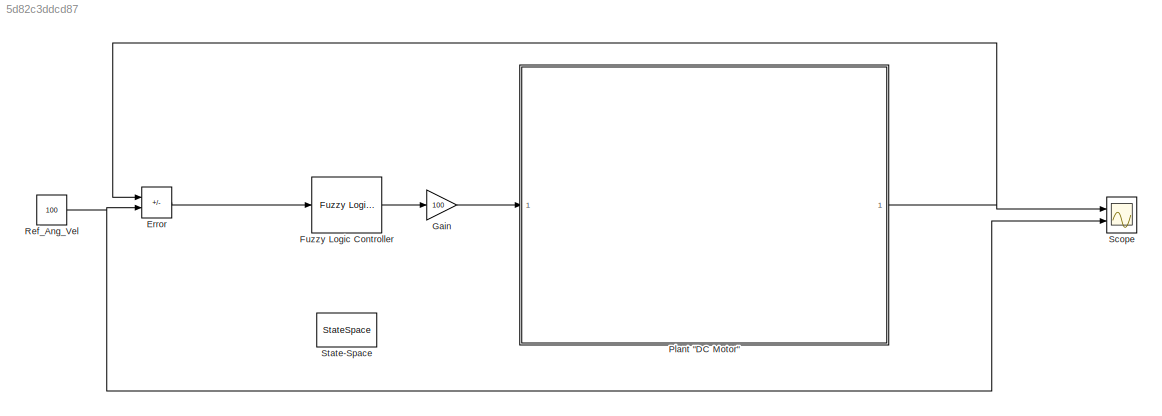
MODEL slx_5d82c3ddcd87
KIND model
CONFIG AbsTol = auto
CONFIG EnableMultiTasking = off
CONFIG FixedStep = auto
CONFIG MaxStep = auto
CONFIG MinStep = auto
CONFIG RelTol = 1e-3
CONFIG SampleTimeConstraint = Unconstrained
CONFIG SolverName = VariableStepAuto
CONFIG StartTime = 0.0
CONFIG StopTime = 10.0
BLOCK [Sum] Error
  IconShape = rectangular
  Inputs = +-
  Ports = [2, 1]
BLOCK [Reference] Fuzzy Logic Controller  REF=fuzblock/Fuzzy Logic   (lib defined in mdl_858b3b3e7478)
Controller
  Ports = [1, 1]
  SourceBlock = fuzblock/Fuzzy Logic \nController
  SourceProductBaseCode = FL
  SourceType = Fuzzy Inference System
BLOCK [Gain] Gain
  Gain = 100
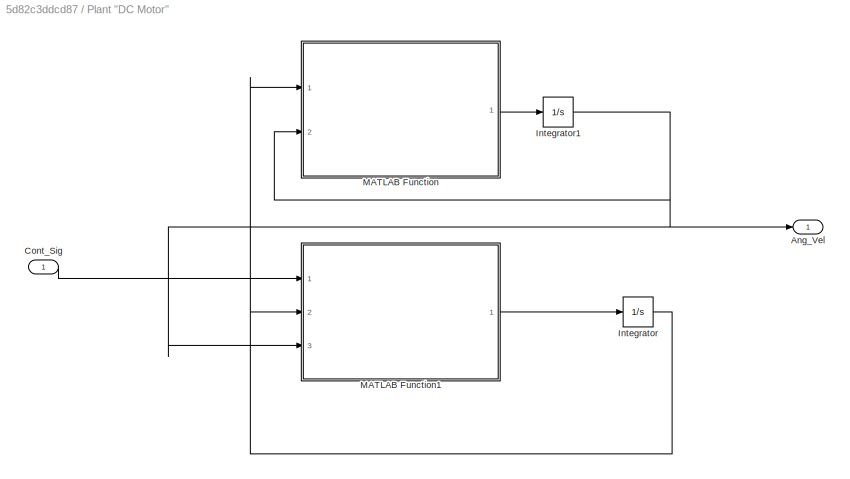
BLOCK [SubSystem] Plant "DC Motor"
  Ports = [1, 1]
  RequestExecContextInheritance = off
BLOCK [Outport] Plant "DC Motor"/Ang_Vel
BLOCK [Inport] Plant "DC Motor"/Cont_Sig
BLOCK [Integrator] Plant "DC Motor"/Integrator
  Ports = [1, 1]
BLOCK [Integrator] Plant "DC Motor"/Integrator1
  Ports = [1, 1]
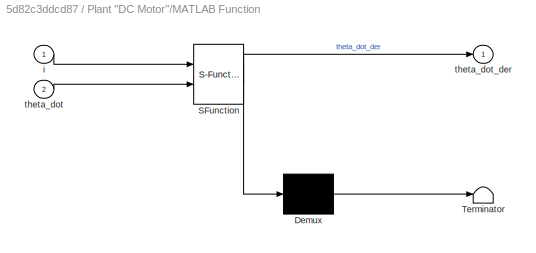
BLOCK [SubSystem] Plant "DC Motor"/MATLAB Function
  ErrorFcn = Stateflow.Translate.translate
  PermitHierarchicalResolution = ExplicitOnly
  Ports = [2, 1]
  RequestExecContextInheritance = off
  SFBlockType = MATLAB Function
  TreatAsAtomicUnit = on
BLOCK [Demux] Plant "DC Motor"/MATLAB Function/ Demux 
  Outputs = 1
  Ports = [1, 1]
BLOCK [S-Function] Plant "DC Motor"/MATLAB Function/ SFunction 
  EnableBusSupport = on
  FunctionName = sf_sfun
  PortCounts = [2 2]
  Ports = [2, 2]
  SFcnIsStateOwnerBlock = off
  SFunctionDeploymentMode = off
  Tag = Stateflow S-Function 2
BLOCK [Terminator] Plant "DC Motor"/MATLAB Function/ Terminator 
BLOCK [Inport] Plant "DC Motor"/MATLAB Function/i
BLOCK [Inport] Plant "DC Motor"/MATLAB Function/theta_dot
  Port = 2
BLOCK [Outport] Plant "DC Motor"/MATLAB Function/theta_dot_der
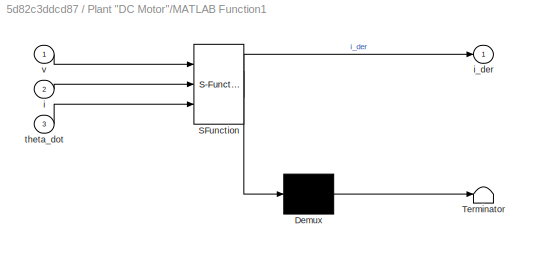
BLOCK [SubSystem] Plant "DC Motor"/MATLAB Function1
  ErrorFcn = Stateflow.Translate.translate
  PermitHierarchicalResolution = ExplicitOnly
  Ports = [3, 1]
  RequestExecContextInheritance = off
  SFBlockType = MATLAB Function
  TreatAsAtomicUnit = on
BLOCK [Demux] Plant "DC Motor"/MATLAB Function1/ Demux 
  Outputs = 1
  Ports = [1, 1]
BLOCK [S-Function] Plant "DC Motor"/MATLAB Function1/ SFunction 
  EnableBusSupport = on
  FunctionName = sf_sfun
  PortCounts = [3 2]
  Ports = [3, 2]
  SFcnIsStateOwnerBlock = off
  SFunctionDeploymentMode = off
  Tag = Stateflow S-Function 1
BLOCK [Terminator] Plant "DC Motor"/MATLAB Function1/ Terminator 
BLOCK [Inport] Plant "DC Motor"/MATLAB Function1/i
  Port = 2
BLOCK [Outport] Plant "DC Motor"/MATLAB Function1/i_der
BLOCK [Inport] Plant "DC Motor"/MATLAB Function1/theta_dot
  Port = 3
BLOCK [Inport] Plant "DC Motor"/MATLAB Function1/v
BLOCK [Constant] Ref_Ang_Vel
  Value = 100
BLOCK [Scope] Scope
  Floating = off
  NumInputPorts = 2
  Ports = [2]
  ScopeSpecificationString = Simulink.scopes.TimeScopeBlockCfg('CurrentConfiguration', extmgr.ConfigurationSet(extmgr.Configuration('Core','General UI',true),extmgr.Configuration('Core','Source UI',true),extmgr.Configuration('Sources','WiredSimulink',true),extmgr.Configuration('Visuals','Time Domain',true,'SerializedDisplays',{struct('MinYLimReal','-14.3118','MaxYLimReal','128.80624','YLabelReal','','MinYLimMag','0.00000','Ma...<+1430ch>
BLOCK [StateSpace] State-Space
  A = A
  B = B
  C = C
  Commented = on
  D = D
  InitialCondition = 0
  Ports = [1, 1]
LINE Error:1 -> Fuzzy Logic Controller:1
LINE Fuzzy Logic Controller:1 -> Gain:1
LINE Gain:1 -> Plant "DC Motor":1
LINE Plant "DC Motor"/Cont_Sig:1 -> Plant "DC Motor"/MATLAB Function1:1
NET Plant "DC Motor"/Integrator1:1 -> Plant "DC Motor"/Ang_Vel:1, Plant "DC Motor"/MATLAB Function1:3, Plant "DC Motor"/MATLAB Function:2
NET Plant "DC Motor"/Integrator:1 -> Plant "DC Motor"/MATLAB Function1:2, Plant "DC Motor"/MATLAB Function:1
LINE Plant "DC Motor"/MATLAB Function1:1 -> Plant "DC Motor"/Integrator:1
LINE Plant "DC Motor"/MATLAB Function:1 -> Plant "DC Motor"/Integrator1:1
NET Plant "DC Motor":1 -> Error:1, Scope:1
NET Ref_Ang_Vel:1 -> Error:2, Scope:2
note: NET lines group one-source signal fan-out (src -> all destinations, sorted); 1:1 wires keep LINE
CHART Plant
"DC Motor"/MATLAB Function states=1 transitions=1
  STATE_LABEL 'eML_blk_kernel()'
  STATE_LABEL 'SCRIPT:\nfunction theta_dot_der = DCMotor(i, theta_dot)\n\nK = 0.01;\nJ = 0.01;\nb = 0.1;\nL = 0.5;\nR = 1;\n\ntheta_dot_der = (-b/J) * theta_dot + (K/J) * i;      % theta_double_dot\n\nend\n'
CHART Plant
"DC Motor"/MATLAB Function1 states=1 transitions=1
  STATE_LABEL 'eML_blk_kernel()'
  STATE_LABEL 'SCRIPT:\nfunction i_der = DCMotor(v, i, theta_dot)\n\nK = 0.01;\nJ = 0.01;\nb = 0.1;\nL = 0.5;\nR = 1;\n\ni_der = (-K/J) * theta_dot - (R/L) * i + (1/L) * v;     % i_dot\n\nend\n'
CHART  states=0 transitions=0
CHART  states=0 transitions=0
